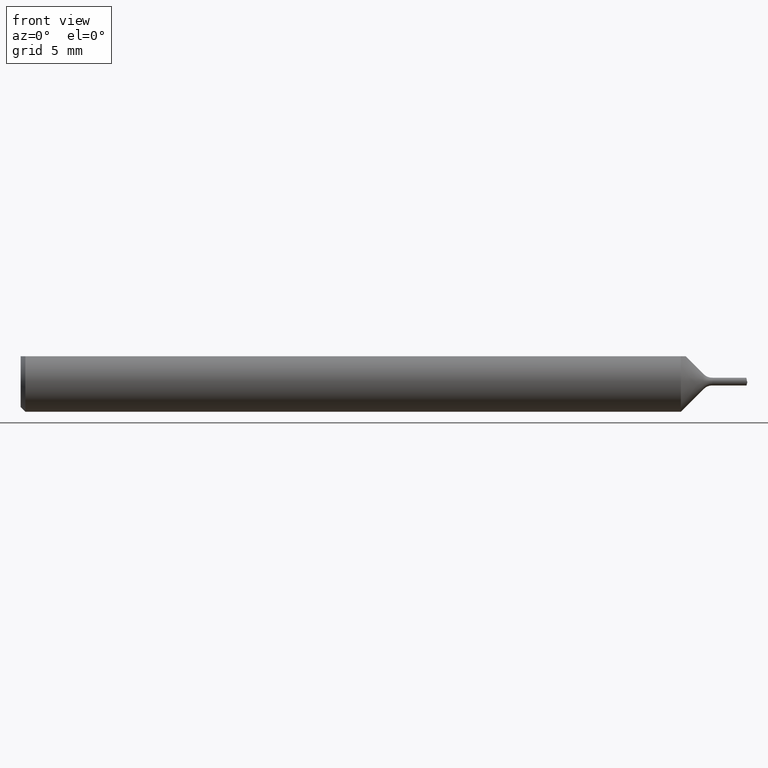
[diagram: clean part render]
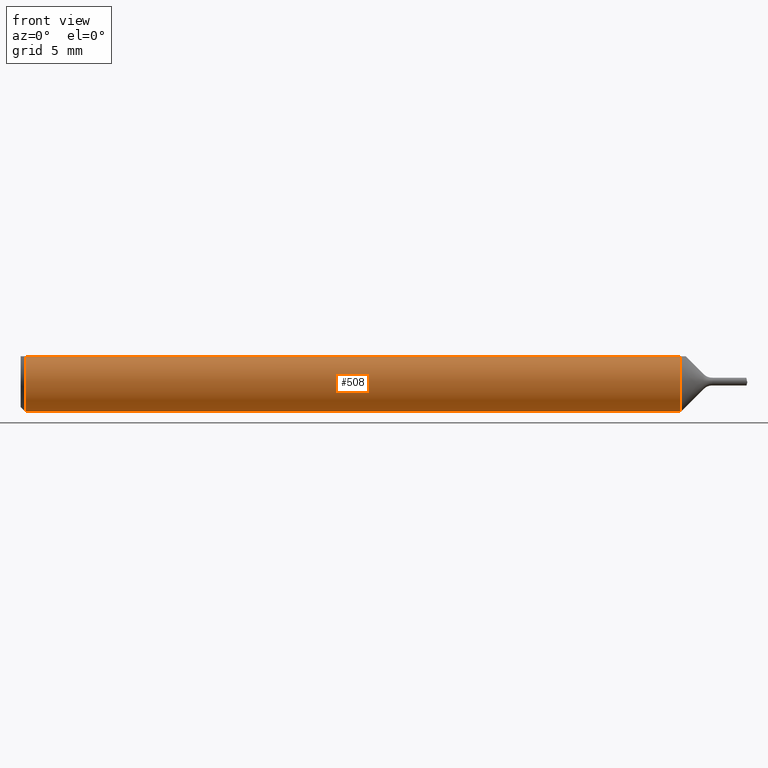
[diagram: same view with one face highlighted and labeled with its STEP entity id]
A machine part, front view. The second image highlights one B-rep face of the part: STEP entity #508.
In plain terms, the highlighted cylindrical surface (edge-blend (fillet) strip) has radius 1.5837 mm, axis along (-1, -0, -0).
Its self-contained STEP definition (entity closure, byte-faithful):
#17 = DIRECTION ( 'NONE',  ( -1.000000000000000000, -0.000000000000000000, -0.000000000000000000 ) ) ;
#36 = ORIENTED_EDGE ( 'NONE', *, *, #514, .T. ) ;
#44 = DIRECTION ( 'NONE',  ( 0.000000000000000000, 0.000000000000000000, 1.000000000000000000 ) ) ;
#53 = VERTEX_POINT ( 'NONE', #432 ) ;
#56 = VECTOR ( 'NONE', #17, 39.37007874015748143 ) ;
#60 = CARTESIAN_POINT ( 'NONE',  ( 0.01000000000000002970, 0.000000000000000000, -0.06235000000000001652 ) ) ;
#97 = VERTEX_POINT ( 'NONE', #549 ) ;
#107 = CARTESIAN_POINT ( 'NONE',  ( 0.01000000000000002970, 0.000000000000000000, 0.000000000000000000 ) ) ;
#113 = EDGE_CURVE ( 'NONE', #53, #688, #711, .T. ) ;
#114 = DIRECTION ( 'NONE',  ( -1.000000000000000000, -0.000000000000000000, -0.000000000000000000 ) ) ;
#122 = DIRECTION ( 'NONE',  ( 0.000000000000000000, 0.000000000000000000, -1.000000000000000000 ) ) ;
#123 = CIRCLE ( 'NONE', #472, 0.06235000000000000958 ) ;
#144 = ORIENTED_EDGE ( 'NONE', *, *, #444, .T. ) ;
#162 = DIRECTION ( 'NONE',  ( 0.000000000000000000, 0.000000000000000000, 1.000000000000000000 ) ) ;
#192 = VERTEX_POINT ( 'NONE', #342 ) ;
#218 = ORIENTED_EDGE ( 'NONE', *, *, #463, .T. ) ;
#224 = CIRCLE ( 'NONE', #630, 0.06235000000000000958 ) ;
#263 = CIRCLE ( 'NONE', #498, 0.06235000000000001652 ) ;
#278 = DIRECTION ( 'NONE',  ( 0.000000000000000000, 0.000000000000000000, -1.000000000000000000 ) ) ;
#282 = LINE ( 'NONE', #350, #650 ) ;
#293 = DIRECTION ( 'NONE',  ( 0.000000000000000000, 0.000000000000000000, 1.000000000000000000 ) ) ;
#313 = CARTESIAN_POINT ( 'NONE',  ( 0.01000000000000849862, -0.03386738844395138781, 0.05235000000000001458 ) ) ;
#319 = DIRECTION ( 'NONE',  ( 1.000000000000000000, 0.000000000000000000, 0.000000000000000000 ) ) ;
#326 = CYLINDRICAL_SURFACE ( 'NONE', #353, 0.06235000000000000958 ) ;
#333 = DIRECTION ( 'NONE',  ( 1.000000000000000000, 0.000000000000000000, 0.000000000000000000 ) ) ;
#342 = CARTESIAN_POINT ( 'NONE',  ( 0.01000000000000002970, 0.03386738844375219992, 0.05235000000000001458 ) ) ;
#350 = CARTESIAN_POINT ( 'NONE',  ( 0.000000000000000000, 0.03386738844375221380, 0.05235000000000000070 ) ) ;
#353 = AXIS2_PLACEMENT_3D ( 'NONE', #431, #651, #162 ) ;
#378 = CIRCLE ( 'NONE', #434, 0.06235000000000001652 ) ;
#397 = DIRECTION ( 'NONE',  ( 1.000000000000000000, 0.000000000000000000, 0.000000000000000000 ) ) ;
#399 = EDGE_LOOP ( 'NONE', ( #577, #218, #672, #557, #144, #36 ) ) ;
#402 = CARTESIAN_POINT ( 'NONE',  ( 1.362649999999999917, 0.000000000000000000, 0.000000000000000000 ) ) ;
#431 = CARTESIAN_POINT ( 'NONE',  ( 0.000000000000000000, 0.000000000000000000, 0.000000000000000000 ) ) ;
#432 = CARTESIAN_POINT ( 'NONE',  ( 1.362649999999999917, -0.03386738844375221380, 0.05235000000000000070 ) ) ;
#434 = AXIS2_PLACEMENT_3D ( 'NONE', #402, #566, #293 ) ;
#444 = EDGE_CURVE ( 'NONE', #658, #192, #224, .T. ) ;
#463 = EDGE_CURVE ( 'NONE', #97, #53, #263, .T. ) ;
#467 = VERTEX_POINT ( 'NONE', #655 ) ;
#472 = AXIS2_PLACEMENT_3D ( 'NONE', #619, #333, #122 ) ;
#491 = CARTESIAN_POINT ( 'NONE',  ( 1.362649999999999917, 0.000000000000000000, 0.000000000000000000 ) ) ;
#498 = AXIS2_PLACEMENT_3D ( 'NONE', #491, #114, #44 ) ;
#508 = ADVANCED_FACE ( 'NONE', ( #700 ), #326, .T. ) ;
#514 = EDGE_CURVE ( 'NONE', #192, #467, #282, .T. ) ;
#549 = CARTESIAN_POINT ( 'NONE',  ( 1.362649999999999917, 7.635672792683749753E-18, -0.06235000000000001652 ) ) ;
#554 = EDGE_CURVE ( 'NONE', #467, #97, #378, .T. ) ;
#557 = ORIENTED_EDGE ( 'NONE', *, *, #567, .T. ) ;
#566 = DIRECTION ( 'NONE',  ( -1.000000000000000000, -0.000000000000000000, -0.000000000000000000 ) ) ;
#567 = EDGE_CURVE ( 'NONE', #688, #658, #123, .T. ) ;
#577 = ORIENTED_EDGE ( 'NONE', *, *, #554, .T. ) ;
#619 = CARTESIAN_POINT ( 'NONE',  ( 0.01000000000000002970, 0.000000000000000000, 0.000000000000000000 ) ) ;
#630 = AXIS2_PLACEMENT_3D ( 'NONE', #107, #319, #278 ) ;
#650 = VECTOR ( 'NONE', #397, 39.37007874015748143 ) ;
#651 = DIRECTION ( 'NONE',  ( -1.000000000000000000, -0.000000000000000000, -0.000000000000000000 ) ) ;
#655 = CARTESIAN_POINT ( 'NONE',  ( 1.362649999999999917, 0.03386738844375221380, 0.05235000000000000070 ) ) ;
#658 = VERTEX_POINT ( 'NONE', #60 ) ;
#672 = ORIENTED_EDGE ( 'NONE', *, *, #113, .T. ) ;
#688 = VERTEX_POINT ( 'NONE', #313 ) ;
#700 = FACE_OUTER_BOUND ( 'NONE', #399, .T. ) ;
#701 = CARTESIAN_POINT ( 'NONE',  ( 0.000000000000000000, -0.03386738844375221380, 0.05235000000000000070 ) ) ;
#711 = LINE ( 'NONE', #701, #56 ) ;